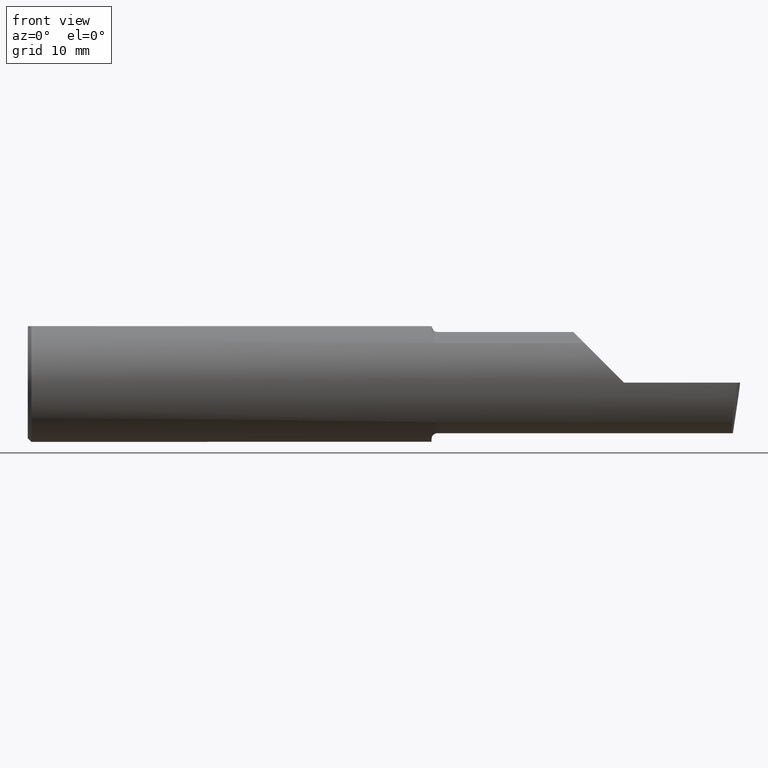
[diagram: clean part render]
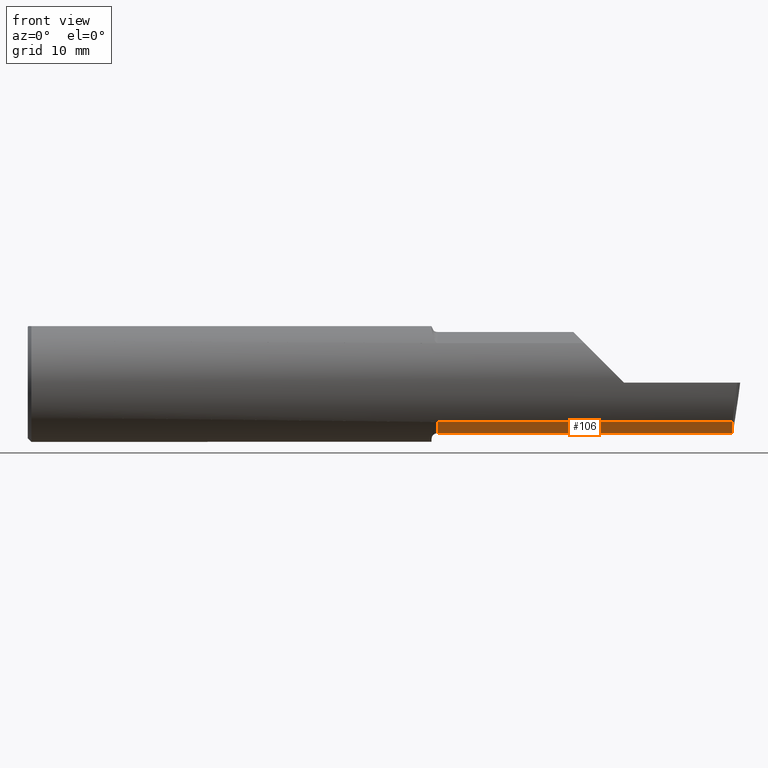
[diagram: same view with one face highlighted and labeled with its STEP entity id]
A machine part, front view. The second image highlights one B-rep face of the part: STEP entity #106.
In plain terms, the highlighted cylindrical surface (partial cylindrical patch) has radius 5.414 mm, axis along (-1, -0, -0).
Its self-contained STEP definition (entity closure, byte-faithful):
#23 = CARTESIAN_POINT ( 'NONE',  ( 2.966195468375010247, -0.05299999999999998462, -0.2131499999999999229 ) ) ;
#36 = VERTEX_POINT ( 'NONE', #140 ) ;
#67 = ORIENTED_EDGE ( 'NONE', *, *, #537, .F. ) ;
#77 = CARTESIAN_POINT ( 'NONE',  ( 2.968492717492763777, -0.1868028301886796583, -0.1659208399614084672 ) ) ;
#93 = DIRECTION ( 'NONE',  ( -1.000000000000000000, -0.0000000000000000000, -0.0000000000000000000 ) ) ;
#106 = ADVANCED_FACE ( 'NONE', ( #657 ), #641, .T. ) ;
#116 = VECTOR ( 'NONE', #200, 39.37007874015748143 ) ;
#120 =( BOUNDED_CURVE ( )  B_SPLINE_CURVE ( 3, ( #509, #202, #453, #23 ),
 .UNSPECIFIED., .F., .F. ) 
 B_SPLINE_CURVE_WITH_KNOTS ( ( 4, 4 ),
 ( 5.814587959757513858, 6.493234751459754150 ),
 .UNSPECIFIED. ) 
 CURVE ( )  GEOMETRIC_REPRESENTATION_ITEM ( )  RATIONAL_B_SPLINE_CURVE ( ( 1.000000000000000000, 0.9619867256453021875, 0.9619867256453021875, 1.000000000000000000 ) ) 
 REPRESENTATION_ITEM ( '' )  );
#131 = LINE ( 'NONE', #406, #751 ) ;
#137 = CARTESIAN_POINT ( 'NONE',  ( 1.725000000000000089, -0.1868028301886795473, -0.1659208399614084672 ) ) ;
#140 = CARTESIAN_POINT ( 'NONE',  ( 1.725000000000000089, -0.05299999999999996381, -0.2131499999999998396 ) ) ;
#142 = CARTESIAN_POINT ( 'NONE',  ( 1.725000000000000089, -0.05299999999999998462, 0.0000000000000000000 ) ) ;
#154 = LINE ( 'NONE', #525, #638 ) ;
#162 = DIRECTION ( 'NONE',  ( -1.000000000000000000, 5.691349986800549142E-18, -0.0000000000000000000 ) ) ;
#170 = AXIS2_PLACEMENT_3D ( 'NONE', #504, #507, #669 ) ;
#200 = DIRECTION ( 'NONE',  ( -1.000000000000000000, -0.0000000000000000000, -0.0000000000000000000 ) ) ;
#201 = VERTEX_POINT ( 'NONE', #137 ) ;
#202 = CARTESIAN_POINT ( 'NONE',  ( 2.965703997523711166, -0.1485302233682061768, -0.1967848538638755362 ) ) ;
#221 = EDGE_LOOP ( 'NONE', ( #699, #67, #739, #715, #515 ) ) ;
#227 = EDGE_CURVE ( 'NONE', #36, #201, #445, .T. ) ;
#231 = EDGE_CURVE ( 'NONE', #607, #36, #304, .T. ) ;
#274 = CARTESIAN_POINT ( 'NONE',  ( 0.0000000000000000000, -0.05299999999999996381, -0.2131499999999999229 ) ) ;
#304 = LINE ( 'NONE', #274, #116 ) ;
#388 = DIRECTION ( 'NONE',  ( 0.0000000000000000000, 0.0000000000000000000, 1.000000000000000000 ) ) ;
#406 = CARTESIAN_POINT ( 'NONE',  ( 2.135000000000000231, -0.1868028301886796583, -0.1659208399614084672 ) ) ;
#445 = CIRCLE ( 'NONE', #581, 0.2131499999999998396 ) ;
#453 = CARTESIAN_POINT ( 'NONE',  ( 2.964907988924523785, -0.1021668565906571485, -0.2131499999999999506 ) ) ;
#504 = CARTESIAN_POINT ( 'NONE',  ( 0.0000000000000000000, -0.05299999999999998462, 0.0000000000000000000 ) ) ;
#507 = DIRECTION ( 'NONE',  ( -1.000000000000000000, -0.0000000000000000000, -0.0000000000000000000 ) ) ;
#509 = CARTESIAN_POINT ( 'NONE',  ( 2.968492717492763777, -0.1868028301886796583, -0.1659208399614084672 ) ) ;
#511 = DIRECTION ( 'NONE',  ( -1.000000000000000000, -0.0000000000000000000, -0.0000000000000000000 ) ) ;
#515 = ORIENTED_EDGE ( 'NONE', *, *, #227, .F. ) ;
#522 = CARTESIAN_POINT ( 'NONE',  ( 2.545000000000000373, -0.05299999999999998462, -0.2131499999999999229 ) ) ;
#525 = CARTESIAN_POINT ( 'NONE',  ( 3.000000000000000444, -0.05299999999999998462, -0.2131499999999999229 ) ) ;
#537 = EDGE_CURVE ( 'NONE', #642, #607, #154, .T. ) ;
#578 = EDGE_CURVE ( 'NONE', #676, #201, #131, .T. ) ;
#581 = AXIS2_PLACEMENT_3D ( 'NONE', #142, #511, #388 ) ;
#607 = VERTEX_POINT ( 'NONE', #522 ) ;
#638 = VECTOR ( 'NONE', #162, 39.37007874015748143 ) ;
#641 = CYLINDRICAL_SURFACE ( 'NONE', #170, 0.2131499999999999229 ) ;
#642 = VERTEX_POINT ( 'NONE', #691 ) ;
#654 = EDGE_CURVE ( 'NONE', #676, #642, #120, .T. ) ;
#657 = FACE_OUTER_BOUND ( 'NONE', #221, .T. ) ;
#669 = DIRECTION ( 'NONE',  ( 0.0000000000000000000, 0.0000000000000000000, 1.000000000000000000 ) ) ;
#676 = VERTEX_POINT ( 'NONE', #77 ) ;
#691 = CARTESIAN_POINT ( 'NONE',  ( 2.966195468375010247, -0.05299999999999998462, -0.2131499999999999229 ) ) ;
#699 = ORIENTED_EDGE ( 'NONE', *, *, #231, .F. ) ;
#715 = ORIENTED_EDGE ( 'NONE', *, *, #578, .T. ) ;
#739 = ORIENTED_EDGE ( 'NONE', *, *, #654, .F. ) ;
#751 = VECTOR ( 'NONE', #93, 39.37007874015748143 ) ;